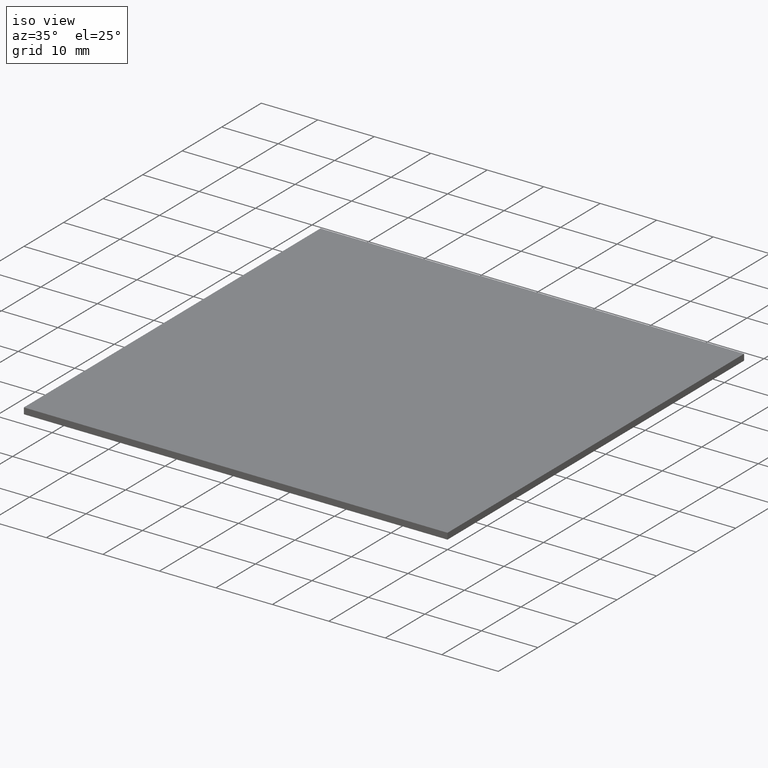
[diagram: clean part render]
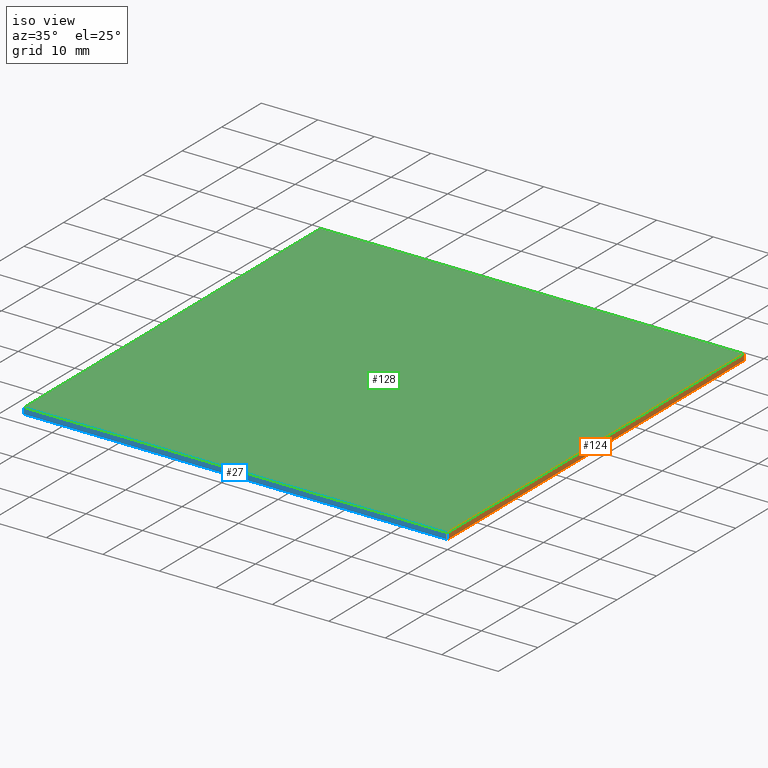
[diagram: same view with three faces highlighted in distinct colors, each labeled with its STEP entity id]
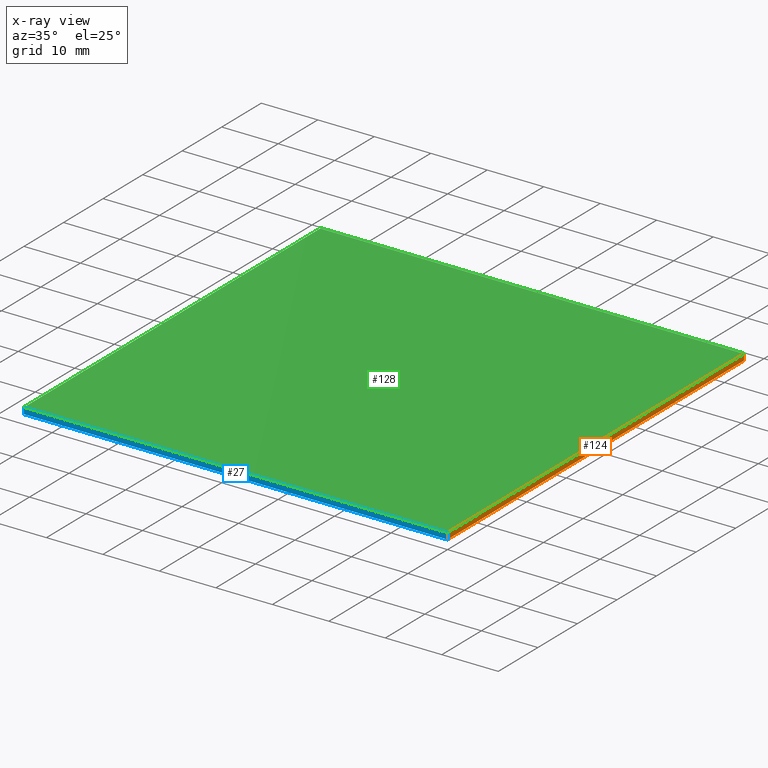
[diagram: x-ray of the same camera — body ghosted, the three highlighted faces saturated]
A machine part, iso view with three faces highlighted in distinct colors.
The next image is the same camera in x-ray (body ghosted, the three faces saturated) — at least one of them is partly hidden behind the body in this view.
Their STEP definitions:

[orange] entity #124 — the highlighted planar face has unit normal (-1, -0, 0).
#8 = DIRECTION ( 'NONE',  ( -1.000000000000000000, -9.251858538542971600E-017, 0.0000000000000000000 ) ) ;
#11 = DIRECTION ( 'NONE',  ( -0.0000000000000000000, -0.0000000000000000000, -1.000000000000000000 ) ) ;
#14 = DIRECTION ( 'NONE',  ( -0.0000000000000000000, -0.0000000000000000000, -1.000000000000000000 ) ) ;
#19 = VERTEX_POINT ( 'NONE', #177 ) ;
#35 = EDGE_CURVE ( 'NONE', #256, #296, #49, .T. ) ;
#38 = ORIENTED_EDGE ( 'NONE', *, *, #35, .T. ) ;
#49 = LINE ( 'NONE', #60, #212 ) ;
#54 = CARTESIAN_POINT ( 'NONE',  ( 49.99999999999999300, 25.00000000000000000, 1.100000000000000100 ) ) ;
#55 = AXIS2_PLACEMENT_3D ( 'NONE', #54, #8, #87 ) ;
#58 = EDGE_LOOP ( 'NONE', ( #38, #93, #228, #167 ) ) ;
#60 = CARTESIAN_POINT ( 'NONE',  ( 49.99999999999999300, 25.00000000000000000, 0.0000000000000000000 ) ) ;
#65 = FACE_OUTER_BOUND ( 'NONE', #58, .T. ) ;
#87 = DIRECTION ( 'NONE',  ( 9.251858538542971600E-017, -1.000000000000000000, 0.0000000000000000000 ) ) ;
#91 = CARTESIAN_POINT ( 'NONE',  ( 50.00000000000000000, -49.99999999999999300, 1.100000000000000100 ) ) ;
#93 = ORIENTED_EDGE ( 'NONE', *, *, #194, .F. ) ;
#104 = VECTOR ( 'NONE', #11, 1000.000000000000000 ) ;
#110 = LINE ( 'NONE', #161, #314 ) ;
#124 = ADVANCED_FACE ( 'NONE', ( #65 ), #202, .F. ) ;
#142 = CARTESIAN_POINT ( 'NONE',  ( 49.99999999999999300, 25.00000000000000000, 0.0000000000000000000 ) ) ;
#161 = CARTESIAN_POINT ( 'NONE',  ( 49.99999999999999300, 25.00000000000000000, 1.100000000000000100 ) ) ;
#167 = ORIENTED_EDGE ( 'NONE', *, *, #168, .T. ) ;
#168 = EDGE_CURVE ( 'NONE', #19, #256, #203, .T. ) ;
#169 = LINE ( 'NONE', #307, #221 ) ;
#177 = CARTESIAN_POINT ( 'NONE',  ( 50.00000000000000000, -49.99999999999999300, 1.100000000000000100 ) ) ;
#185 = DIRECTION ( 'NONE',  ( -9.251858538542971600E-017, 1.000000000000000000, -0.0000000000000000000 ) ) ;
#194 = EDGE_CURVE ( 'NONE', #225, #296, #169, .T. ) ;
#202 = PLANE ( 'NONE',  #55 ) ;
#203 = LINE ( 'NONE', #91, #104 ) ;
#211 = EDGE_CURVE ( 'NONE', #19, #225, #110, .T. ) ;
#212 = VECTOR ( 'NONE', #231, 1000.000000000000000 ) ;
#221 = VECTOR ( 'NONE', #14, 1000.000000000000000 ) ;
#225 = VERTEX_POINT ( 'NONE', #260 ) ;
#228 = ORIENTED_EDGE ( 'NONE', *, *, #211, .F. ) ;
#231 = DIRECTION ( 'NONE',  ( -9.251858538542971600E-017, 1.000000000000000000, -0.0000000000000000000 ) ) ;
#256 = VERTEX_POINT ( 'NONE', #281 ) ;
#260 = CARTESIAN_POINT ( 'NONE',  ( 49.99999999999999300, 25.00000000000000000, 1.100000000000000100 ) ) ;
#281 = CARTESIAN_POINT ( 'NONE',  ( 50.00000000000000000, -49.99999999999999300, 0.0000000000000000000 ) ) ;
#296 = VERTEX_POINT ( 'NONE', #142 ) ;
#307 = CARTESIAN_POINT ( 'NONE',  ( 49.99999999999999300, 25.00000000000000000, 1.100000000000000100 ) ) ;
#314 = VECTOR ( 'NONE', #185, 1000.000000000000000 ) ;

[blue] entity #27 — the highlighted planar face has unit normal (0, 1, 0).
#5 = VERTEX_POINT ( 'NONE', #63 ) ;
#11 = DIRECTION ( 'NONE',  ( -0.0000000000000000000, -0.0000000000000000000, -1.000000000000000000 ) ) ;
#19 = VERTEX_POINT ( 'NONE', #177 ) ;
#27 = ADVANCED_FACE ( 'NONE', ( #126 ), #298, .F. ) ;
#31 = DIRECTION ( 'NONE',  ( 0.0000000000000000000, -0.0000000000000000000, 1.000000000000000000 ) ) ;
#33 = ORIENTED_EDGE ( 'NONE', *, *, #50, .F. ) ;
#50 = EDGE_CURVE ( 'NONE', #160, #19, #274, .T. ) ;
#57 = CARTESIAN_POINT ( 'NONE',  ( -24.99999999999998900, -49.99999999999999300, 1.100000000000000100 ) ) ;
#62 = LINE ( 'NONE', #283, #76 ) ;
#63 = CARTESIAN_POINT ( 'NONE',  ( -24.99999999999998900, -49.99999999999999300, 0.0000000000000000000 ) ) ;
#68 = DIRECTION ( 'NONE',  ( -0.0000000000000000000, -0.0000000000000000000, -1.000000000000000000 ) ) ;
#76 = VECTOR ( 'NONE', #68, 1000.000000000000000 ) ;
#81 = ORIENTED_EDGE ( 'NONE', *, *, #269, .T. ) ;
#91 = CARTESIAN_POINT ( 'NONE',  ( 50.00000000000000000, -49.99999999999999300, 1.100000000000000100 ) ) ;
#96 = CARTESIAN_POINT ( 'NONE',  ( -24.99999999999998900, -49.99999999999999300, 0.0000000000000000000 ) ) ;
#97 = DIRECTION ( 'NONE',  ( 1.000000000000000000, 0.0000000000000000000, 0.0000000000000000000 ) ) ;
#104 = VECTOR ( 'NONE', #11, 1000.000000000000000 ) ;
#126 = FACE_OUTER_BOUND ( 'NONE', #313, .T. ) ;
#127 = VECTOR ( 'NONE', #97, 1000.000000000000000 ) ;
#140 = VECTOR ( 'NONE', #299, 1000.000000000000000 ) ;
#160 = VERTEX_POINT ( 'NONE', #57 ) ;
#168 = EDGE_CURVE ( 'NONE', #19, #256, #203, .T. ) ;
#176 = CARTESIAN_POINT ( 'NONE',  ( -24.99999999999998900, -49.99999999999999300, 1.100000000000000100 ) ) ;
#177 = CARTESIAN_POINT ( 'NONE',  ( 50.00000000000000000, -49.99999999999999300, 1.100000000000000100 ) ) ;
#180 = ORIENTED_EDGE ( 'NONE', *, *, #257, .T. ) ;
#196 = LINE ( 'NONE', #96, #127 ) ;
#201 = ORIENTED_EDGE ( 'NONE', *, *, #168, .F. ) ;
#203 = LINE ( 'NONE', #91, #104 ) ;
#256 = VERTEX_POINT ( 'NONE', #281 ) ;
#257 = EDGE_CURVE ( 'NONE', #160, #5, #62, .T. ) ;
#269 = EDGE_CURVE ( 'NONE', #5, #256, #196, .T. ) ;
#274 = LINE ( 'NONE', #176, #140 ) ;
#280 = CARTESIAN_POINT ( 'NONE',  ( -24.99999999999998900, -49.99999999999999300, 1.100000000000000100 ) ) ;
#281 = CARTESIAN_POINT ( 'NONE',  ( 50.00000000000000000, -49.99999999999999300, 0.0000000000000000000 ) ) ;
#283 = CARTESIAN_POINT ( 'NONE',  ( -24.99999999999998900, -49.99999999999999300, 1.100000000000000100 ) ) ;
#294 = AXIS2_PLACEMENT_3D ( 'NONE', #280, #302, #31 ) ;
#298 = PLANE ( 'NONE',  #294 ) ;
#299 = DIRECTION ( 'NONE',  ( 1.000000000000000000, 0.0000000000000000000, 0.0000000000000000000 ) ) ;
#302 = DIRECTION ( 'NONE',  ( 0.0000000000000000000, 1.000000000000000000, 0.0000000000000000000 ) ) ;
#313 = EDGE_LOOP ( 'NONE', ( #81, #201, #33, #180 ) ) ;

[green] entity #128 — the highlighted planar face has unit normal (-0, 0, 1).
#3 = DIRECTION ( 'NONE',  ( -1.000000000000000000, -0.0000000000000000000, -0.0000000000000000000 ) ) ;
#7 = EDGE_LOOP ( 'NONE', ( #39, #179, #112, #15 ) ) ;
#15 = ORIENTED_EDGE ( 'NONE', *, *, #154, .T. ) ;
#19 = VERTEX_POINT ( 'NONE', #177 ) ;
#30 = LINE ( 'NONE', #182, #145 ) ;
#39 = ORIENTED_EDGE ( 'NONE', *, *, #236, .T. ) ;
#50 = EDGE_CURVE ( 'NONE', #160, #19, #274, .T. ) ;
#57 = CARTESIAN_POINT ( 'NONE',  ( -24.99999999999998900, -49.99999999999999300, 1.100000000000000100 ) ) ;
#89 = DIRECTION ( 'NONE',  ( 1.000000000000000000, 0.0000000000000000000, 0.0000000000000000000 ) ) ;
#94 = AXIS2_PLACEMENT_3D ( 'NONE', #111, #130, #89 ) ;
#108 = VECTOR ( 'NONE', #261, 1000.000000000000000 ) ;
#109 = CARTESIAN_POINT ( 'NONE',  ( -25.00000000000000000, 25.00000000000000000, 1.100000000000000100 ) ) ;
#110 = LINE ( 'NONE', #161, #314 ) ;
#111 = CARTESIAN_POINT ( 'NONE',  ( 0.0000000000000000000, 0.0000000000000000000, 1.100000000000000100 ) ) ;
#112 = ORIENTED_EDGE ( 'NONE', *, *, #211, .T. ) ;
#122 = FACE_OUTER_BOUND ( 'NONE', #7, .T. ) ;
#128 = ADVANCED_FACE ( 'NONE', ( #122 ), #132, .T. ) ;
#130 = DIRECTION ( 'NONE',  ( -0.0000000000000000000, 0.0000000000000000000, 1.000000000000000000 ) ) ;
#132 = PLANE ( 'NONE',  #94 ) ;
#140 = VECTOR ( 'NONE', #299, 1000.000000000000000 ) ;
#145 = VECTOR ( 'NONE', #3, 1000.000000000000000 ) ;
#151 = VERTEX_POINT ( 'NONE', #109 ) ;
#154 = EDGE_CURVE ( 'NONE', #225, #151, #30, .T. ) ;
#160 = VERTEX_POINT ( 'NONE', #57 ) ;
#161 = CARTESIAN_POINT ( 'NONE',  ( 49.99999999999999300, 25.00000000000000000, 1.100000000000000100 ) ) ;
#176 = CARTESIAN_POINT ( 'NONE',  ( -24.99999999999998900, -49.99999999999999300, 1.100000000000000100 ) ) ;
#177 = CARTESIAN_POINT ( 'NONE',  ( 50.00000000000000000, -49.99999999999999300, 1.100000000000000100 ) ) ;
#179 = ORIENTED_EDGE ( 'NONE', *, *, #50, .T. ) ;
#182 = CARTESIAN_POINT ( 'NONE',  ( -25.00000000000000000, 25.00000000000000000, 1.100000000000000100 ) ) ;
#185 = DIRECTION ( 'NONE',  ( -9.251858538542971600E-017, 1.000000000000000000, -0.0000000000000000000 ) ) ;
#211 = EDGE_CURVE ( 'NONE', #19, #225, #110, .T. ) ;
#213 = CARTESIAN_POINT ( 'NONE',  ( -25.00000000000000000, 25.00000000000000000, 1.100000000000000100 ) ) ;
#225 = VERTEX_POINT ( 'NONE', #260 ) ;
#236 = EDGE_CURVE ( 'NONE', #151, #160, #295, .T. ) ;
#260 = CARTESIAN_POINT ( 'NONE',  ( 49.99999999999999300, 25.00000000000000000, 1.100000000000000100 ) ) ;
#261 = DIRECTION ( 'NONE',  ( 1.387778780781445700E-016, -1.000000000000000000, 0.0000000000000000000 ) ) ;
#274 = LINE ( 'NONE', #176, #140 ) ;
#295 = LINE ( 'NONE', #213, #108 ) ;
#299 = DIRECTION ( 'NONE',  ( 1.000000000000000000, 0.0000000000000000000, 0.0000000000000000000 ) ) ;
#314 = VECTOR ( 'NONE', #185, 1000.000000000000000 ) ;